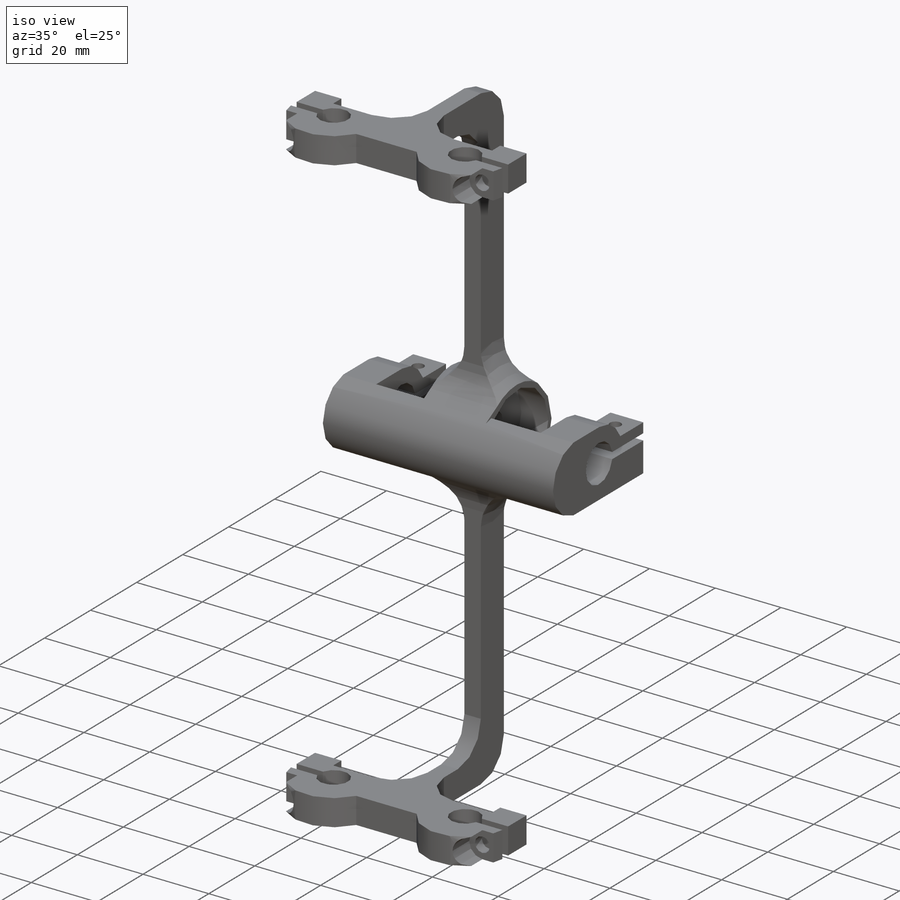
[diagram: iso view]
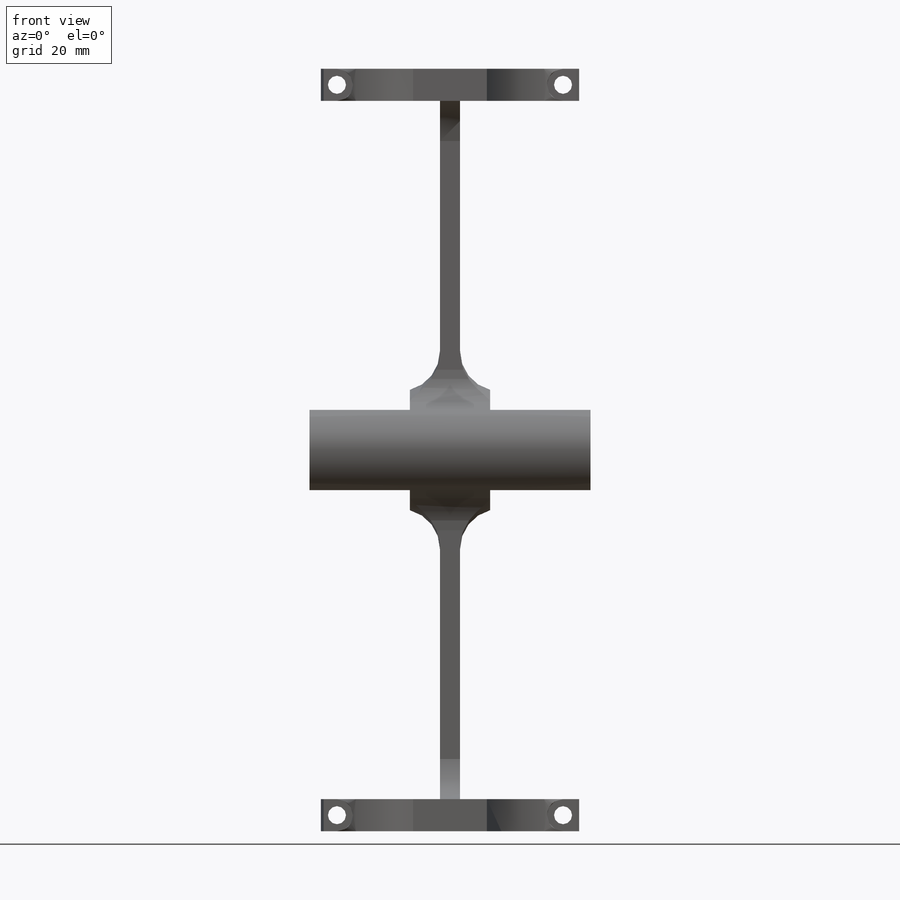
[diagram: front view]
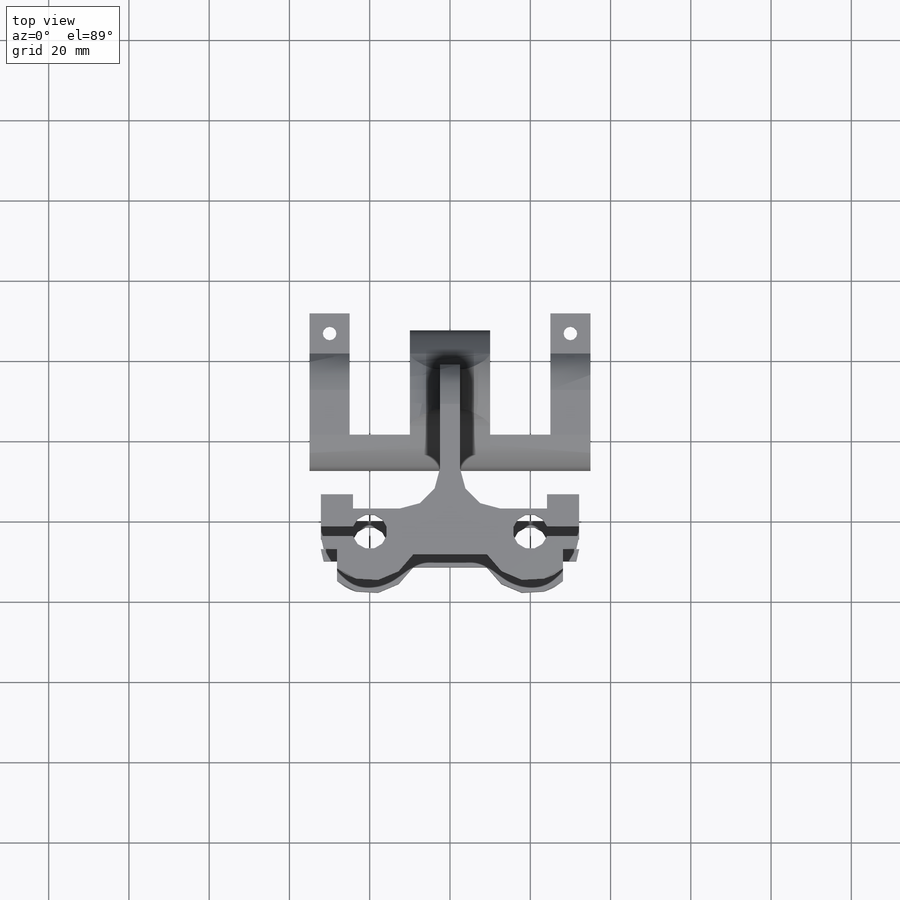
[diagram: top view]
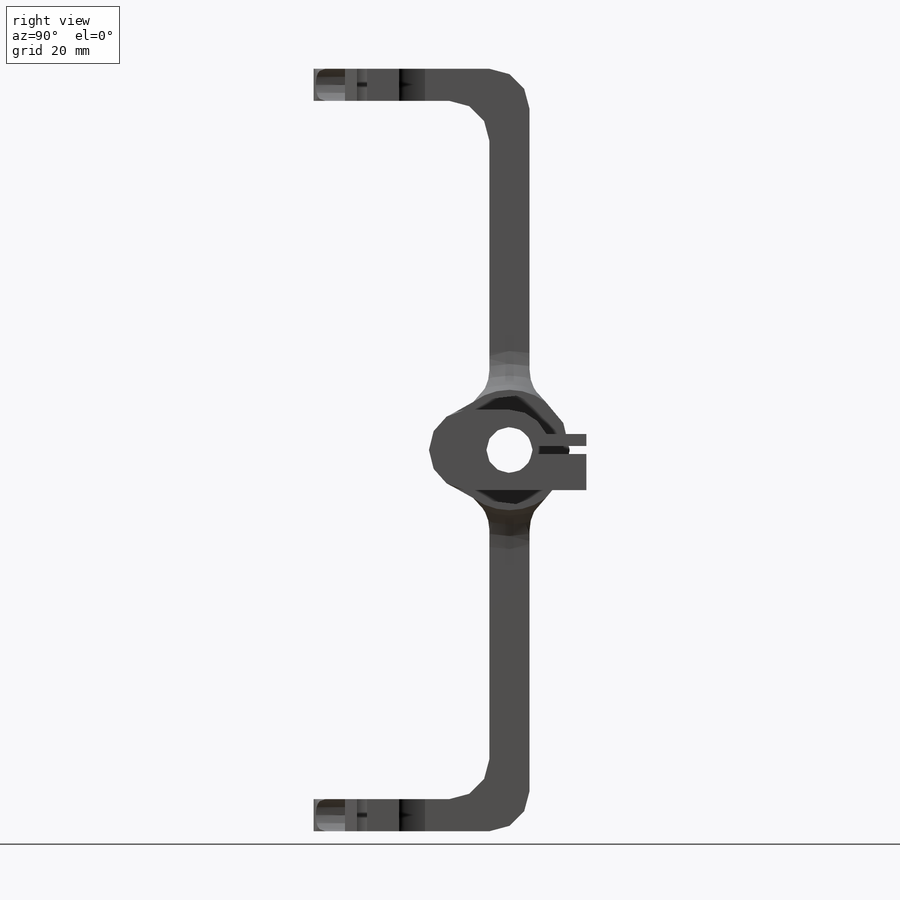
[diagram: right view]
SOLIDWORKS PART (.sldprt)
format: sldprt  version: not decoded by parser v0  size: 478,208 bytes
history: native  units: mm
features: sketch x12, extrude x5, cut_extrude x5, mirror x3, fillet x2, material x1, plane x1, hole x1 (+13 scaffold rows collapsed)
feature tree (43):
  scaffold x13  (default folders/planes/origin — collapsed)
  material  "PLA Black"
  sketch  "Sketch1"  dims[c1.D4=12.0mm c1.D1=180.0mm c1.D2=8.0mm c1.D3=10.0mm c2.D1=190.0mm]
  extrude  "Boss-Extrude1"  Depth=5mm
  sketch  "Sketch2"  dims[c1.D2=6.0mm c1.D3=8.7mm c1.D4=4.25mm c1.D1=40.0mm c2.D2=2.5mm c2.D4=4.0mm c2.D5=~4.092734mm c3.D4=8.0mm c3.D5=8.0mm]
  extrude  "Boss-Extrude2"  Depth=8mm
  sketch  "Sketch7"  dims[D1=4.5mm]
  cut_extrude  "Cut-Extrude3"  [1 undecoded]
  plane  "Plane1"
  sketch  "Sketch8"  dims[D1=8.0mm D2=4.05mm]
  cut_extrude  "Cut-Extrude4"  Depth=8mm
  mirror  "Mirror4"
  sketch  "Sketch4"  dims[D1=30.0mm]
  extrude  "Boss-Extrude4"  Depth=20mm
  sketch  "Sketch5"  dims[D1=27.2mm]
  cut_extrude  "Cut-Extrude1"  Depth=8.2mm
  mirror  "Mirror3"
  sketch  "Sketch6"  dims[D1=11.5mm D2=~0.16221mm]
  cut_extrude  "Cut-Extrude2"  [1 undecoded]
  fillet  "Fillet1"  Radius=10mm
  sketch  "Sketch9"  dims[c1.D2=~10.032735mm c1.D1=20.0mm c2.D2=10.0mm]
  extrude  "Boss-Extrude5"  Depth=70mm
  sketch  "Sketch10"  dims[D1=10.0mm D2=3.0mm D3=2.0mm]
  extrude  "Boss-Extrude6"  Depth=10mm
  hole  "M3 Clearance Hole1"  Diameter=3.4mm Depth=3.001mm
  sketch  "Sketch12"
  sketch  "Sketch11"  dims[hole-wizard template sketch: 60 standard entries collapsed; hole parameters kept: c18.Thru Hole Depth=3.001mm]
  sketch  "Sketch14"  dims[D1=4.65mm]
  cut_extrude  "Cut-Extrude5"  [1 undecoded]
  mirror  "Mirror5"
  fillet  "Fillet3"  Radius=20mm
decode coverage: 21 of 28 modeling features carry decoded parameters
note: ~ marks probable driven/reference dimensions
note: 3 parameter values undecoded
summary: no parameter record found for 3 features
note: suppression state not decoded; provenance and decode notes live in map.json
